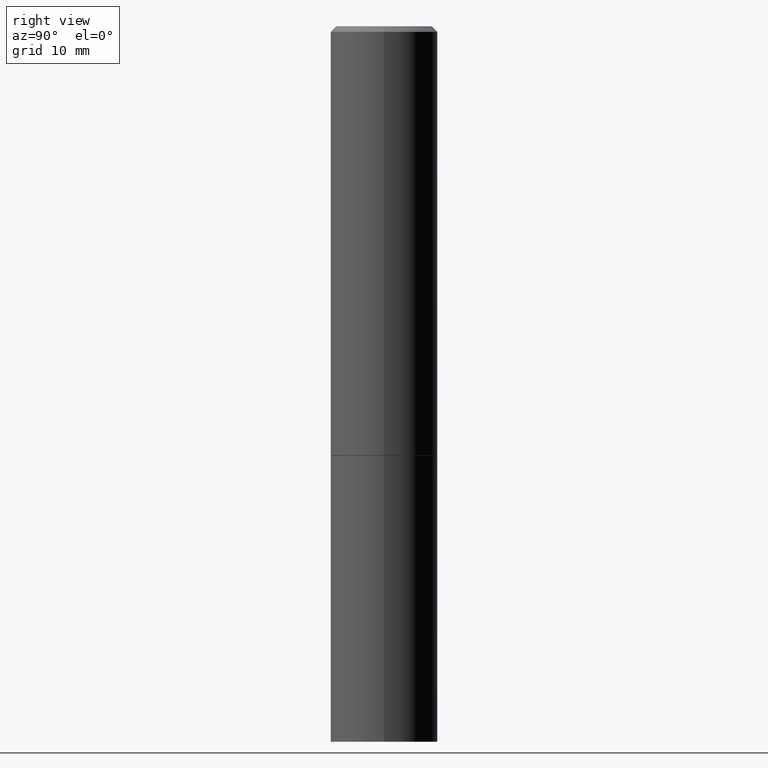
[diagram: clean part render]
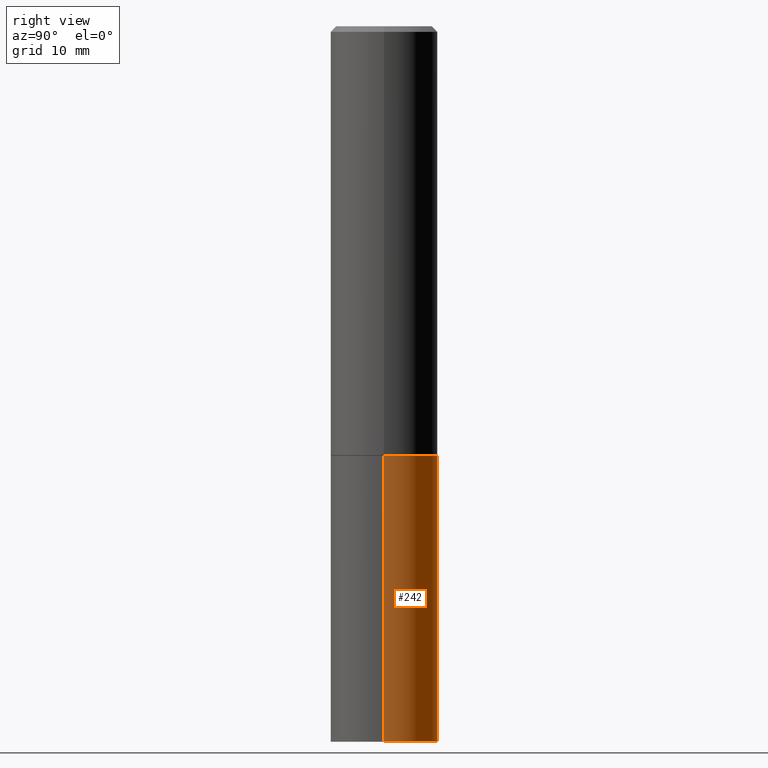
[diagram: same view with one face highlighted and labeled with its STEP entity id]
A machine part, right view. The second image highlights one B-rep face of the part: STEP entity #242.
In plain terms, the highlighted cylindrical surface (partial cylindrical patch) has radius 4.7625 mm, axis along (-0, 0, 1).
Its self-contained STEP definition (entity closure, byte-faithful):
#12 = CARTESIAN_POINT ( 'NONE',  ( -0.1875000000000000278, -5.650695048136103317E-15, -2.500000000000000000 ) ) ;
#15 = EDGE_CURVE ( 'NONE', #360, #310, #61, .T. ) ;
#18 = DIRECTION ( 'NONE',  ( -2.445468806185136877E-29, 3.491481338843145188E-15, 1.000000000000000000 ) ) ;
#36 = DIRECTION ( 'NONE',  ( 1.000000000000000000, -6.982962677686266711E-15, 0.000000000000000000 ) ) ;
#61 = CIRCLE ( 'NONE', #116, 0.1875000000000000278 ) ;
#68 = DIRECTION ( 'NONE',  ( -2.445468806185136877E-29, 3.491481338843145188E-15, 1.000000000000000000 ) ) ;
#78 = DIRECTION ( 'NONE',  ( 1.000000000000000000, -6.982962677686266711E-15, 0.000000000000000000 ) ) ;
#100 = CARTESIAN_POINT ( 'NONE',  ( -0.1875000000000000278, 1.332267629550188046E-15, -9.223003294227947991E-30 ) ) ;
#105 = CARTESIAN_POINT ( 'NONE',  ( 0.000000000000000000, 0.000000000000000000, 0.000000000000000000 ) ) ;
#107 = ORIENTED_EDGE ( 'NONE', *, *, #154, .F. ) ;
#110 = VERTEX_POINT ( 'NONE', #12 ) ;
#111 = CARTESIAN_POINT ( 'NONE',  ( 6.113672015462842613E-29, -8.728703347107864943E-15, -2.500000000000000000 ) ) ;
#115 = EDGE_CURVE ( 'NONE', #110, #310, #320, .T. ) ;
#116 = AXIS2_PLACEMENT_3D ( 'NONE', #288, #261, #36 ) ;
#126 = LINE ( 'NONE', #275, #129 ) ;
#129 = VECTOR ( 'NONE', #18, 39.37007874015748143 ) ;
#131 = CIRCLE ( 'NONE', #260, 0.1875000000000000278 ) ;
#154 = EDGE_CURVE ( 'NONE', #341, #360, #126, .T. ) ;
#177 = EDGE_LOOP ( 'NONE', ( #337, #315, #206, #107 ) ) ;
#201 = DIRECTION ( 'NONE',  ( 1.000000000000000000, -6.982962677686265922E-15, 4.876176775795935793E-29 ) ) ;
#206 = ORIENTED_EDGE ( 'NONE', *, *, #15, .F. ) ;
#231 = CARTESIAN_POINT ( 'NONE',  ( -0.1875000000000000278, -5.650695048136103317E-15, -1.500000000000000222 ) ) ;
#242 = ADVANCED_FACE ( 'NONE', ( #358 ), #257, .T. ) ;
#255 = EDGE_CURVE ( 'NONE', #341, #110, #131, .T. ) ;
#257 = CYLINDRICAL_SURFACE ( 'NONE', #307, 0.1875000000000000278 ) ;
#259 = CARTESIAN_POINT ( 'NONE',  ( 0.1875000000000000278, -1.003800884917403995E-14, -2.500000000000000000 ) ) ;
#260 = AXIS2_PLACEMENT_3D ( 'NONE', #111, #305, #78 ) ;
#261 = DIRECTION ( 'NONE',  ( -2.445468806185136597E-29, 3.491481338843145583E-15, 1.000000000000000000 ) ) ;
#275 = CARTESIAN_POINT ( 'NONE',  ( 0.1875000000000000278, -1.309305502066175008E-15, 9.142831454617381013E-30 ) ) ;
#288 = CARTESIAN_POINT ( 'NONE',  ( 3.668203209277704895E-29, -5.237222008264718177E-15, -1.500000000000000222 ) ) ;
#305 = DIRECTION ( 'NONE',  ( -2.445468806185136597E-29, 3.491481338843145583E-15, 1.000000000000000000 ) ) ;
#307 = AXIS2_PLACEMENT_3D ( 'NONE', #105, #330, #201 ) ;
#310 = VERTEX_POINT ( 'NONE', #231 ) ;
#315 = ORIENTED_EDGE ( 'NONE', *, *, #115, .T. ) ;
#320 = LINE ( 'NONE', #100, #324 ) ;
#324 = VECTOR ( 'NONE', #68, 39.37007874015748143 ) ;
#330 = DIRECTION ( 'NONE',  ( -2.445468806185136597E-29, 3.491481338843145583E-15, 1.000000000000000000 ) ) ;
#337 = ORIENTED_EDGE ( 'NONE', *, *, #255, .T. ) ;
#341 = VERTEX_POINT ( 'NONE', #259 ) ;
#358 = FACE_OUTER_BOUND ( 'NONE', #177, .T. ) ;
#360 = VERTEX_POINT ( 'NONE', #364 ) ;
#364 = CARTESIAN_POINT ( 'NONE',  ( 0.1875000000000000278, -6.546527510330893974E-15, -1.500000000000000222 ) ) ;